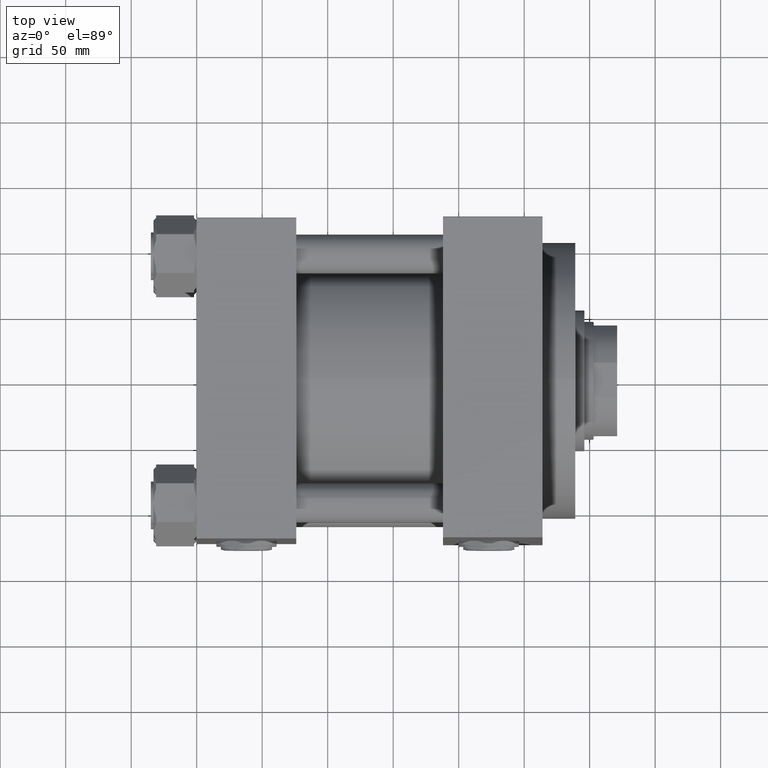
[diagram: clean part render]
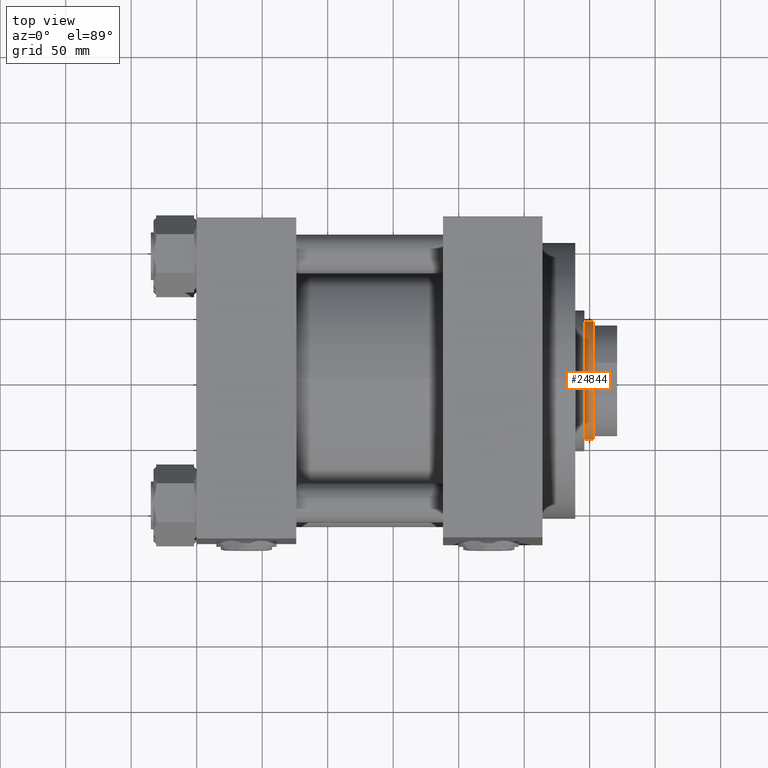
[diagram: same view with one face highlighted and labeled with its STEP entity id]
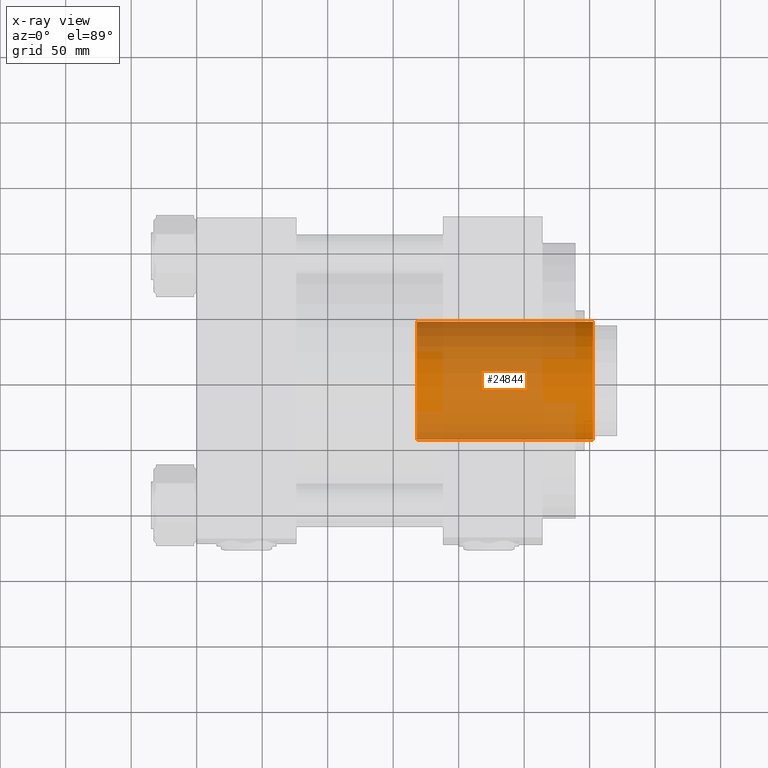
[diagram: x-ray of the same camera — body ghosted, the highlighted face saturated]
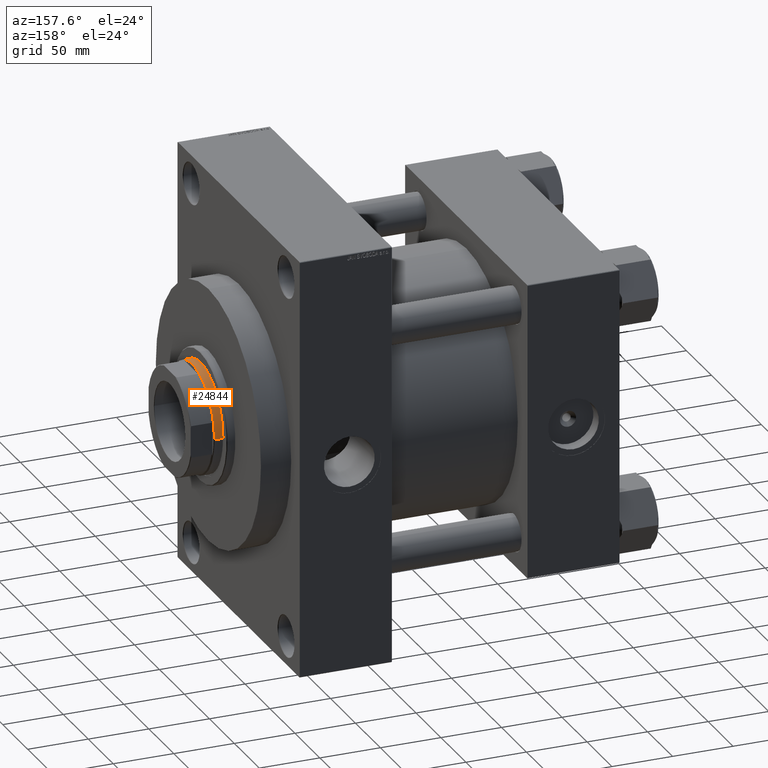
[diagram: same view with one face highlighted and labeled with its STEP entity id]
A machine part, top view. The second image highlights one B-rep face of the part: STEP entity #24844.
The next image is the same camera in x-ray: the body ghosted, the highlighted face saturated — about 75% of this face is hidden behind the body in this view.
A second angle (auxiliary view) of the same face is appended — the face is thin or edge-on in the first view.
In plain terms, the highlighted cylindrical surface (partial cylindrical patch) has radius 45 mm, axis along (-1, 0, 0).
Its self-contained STEP definition (entity closure, byte-faithful):
#405 = VERTEX_POINT ( 'NONE', #34573 ) ;
#715 = ORIENTED_EDGE ( 'NONE', *, *, #8626, .T. ) ;
#803 = CARTESIAN_POINT ( 'NONE',  ( 0.000000000000000000, 0.000000000000000000, 227.0000000000000000 ) ) ;
#2067 = DIRECTION ( 'NONE',  ( 1.000000000000000000, 0.000000000000000000, 0.000000000000000000 ) ) ;
#2850 = EDGE_CURVE ( 'NONE', #39504, #47882, #14588, .T. ) ;
#4056 = FACE_OUTER_BOUND ( 'NONE', #42221, .T. ) ;
#5513 = AXIS2_PLACEMENT_3D ( 'NONE', #40515, #21419, #45045 ) ;
#5521 = AXIS2_PLACEMENT_3D ( 'NONE', #5833, #47558, #2067 ) ;
#5833 = CARTESIAN_POINT ( 'NONE',  ( 0.000000000000000000, 0.000000000000000000, 92.00000000000000000 ) ) ;
#8078 = CYLINDRICAL_SURFACE ( 'NONE', #27482, 45.00000000000000711 ) ;
#8626 = EDGE_CURVE ( 'NONE', #405, #22494, #9103, .T. ) ;
#8685 = EDGE_CURVE ( 'NONE', #22494, #47882, #26352, .T. ) ;
#9103 = LINE ( 'NONE', #32220, #17521 ) ;
#9484 = CIRCLE ( 'NONE', #5513, 45.00000000000000711 ) ;
#10086 = VECTOR ( 'NONE', #15576, 1000.000000000000000 ) ;
#12035 = EDGE_CURVE ( 'NONE', #39504, #405, #9484, .T. ) ;
#14588 = LINE ( 'NONE', #18612, #10086 ) ;
#15576 = DIRECTION ( 'NONE',  ( -0.000000000000000000, -0.000000000000000000, -1.000000000000000000 ) ) ;
#17381 = DIRECTION ( 'NONE',  ( -0.000000000000000000, -0.000000000000000000, -1.000000000000000000 ) ) ;
#17521 = VECTOR ( 'NONE', #17381, 1000.000000000000000 ) ;
#17849 = ORIENTED_EDGE ( 'NONE', *, *, #2850, .F. ) ;
#18290 = ORIENTED_EDGE ( 'NONE', *, *, #8685, .T. ) ;
#18612 = CARTESIAN_POINT ( 'NONE',  ( 45.00000000000000711, 5.510910596163090344E-15, 227.0000000000000000 ) ) ;
#21419 = DIRECTION ( 'NONE',  ( 0.000000000000000000, 0.000000000000000000, -1.000000000000000000 ) ) ;
#22494 = VERTEX_POINT ( 'NONE', #39186 ) ;
#24844 = ADVANCED_FACE ( 'NONE', ( #4056 ), #8078, .T. ) ;
#26352 = CIRCLE ( 'NONE', #5521, 45.00000000000000711 ) ;
#27160 = CARTESIAN_POINT ( 'NONE',  ( 45.00000000000000711, 5.510910596163090344E-15, 226.4999999999998863 ) ) ;
#27482 = AXIS2_PLACEMENT_3D ( 'NONE', #803, #31204, #38974 ) ;
#28889 = CARTESIAN_POINT ( 'NONE',  ( 45.00000000000000711, 5.510910596163090344E-15, 92.00000000000000000 ) ) ;
#31204 = DIRECTION ( 'NONE',  ( -0.000000000000000000, -0.000000000000000000, -1.000000000000000000 ) ) ;
#32220 = CARTESIAN_POINT ( 'NONE',  ( -45.00000000000000711, 0.000000000000000000, 227.0000000000000000 ) ) ;
#34573 = CARTESIAN_POINT ( 'NONE',  ( -45.00000000000000711, 0.000000000000000000, 226.4999999999998863 ) ) ;
#38974 = DIRECTION ( 'NONE',  ( -1.000000000000000000, 0.000000000000000000, 0.000000000000000000 ) ) ;
#39186 = CARTESIAN_POINT ( 'NONE',  ( -45.00000000000000711, 0.000000000000000000, 92.00000000000000000 ) ) ;
#39504 = VERTEX_POINT ( 'NONE', #27160 ) ;
#40515 = CARTESIAN_POINT ( 'NONE',  ( 0.000000000000000000, 0.000000000000000000, 226.4999999999998863 ) ) ;
#40884 = ORIENTED_EDGE ( 'NONE', *, *, #12035, .T. ) ;
#42221 = EDGE_LOOP ( 'NONE', ( #17849, #40884, #715, #18290 ) ) ;
#45045 = DIRECTION ( 'NONE',  ( 1.000000000000000000, 0.000000000000000000, 0.000000000000000000 ) ) ;
#47558 = DIRECTION ( 'NONE',  ( 0.000000000000000000, 0.000000000000000000, 1.000000000000000000 ) ) ;
#47882 = VERTEX_POINT ( 'NONE', #28889 ) ;